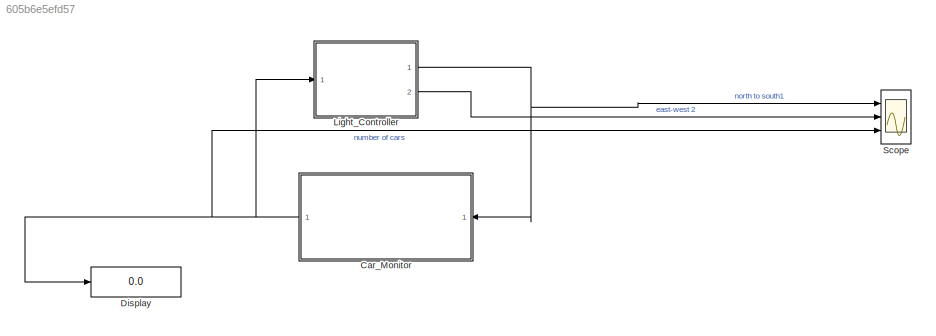
MODEL slx_605b6e5efd57
KIND model
CONFIG AbsTol = auto
CONFIG EnableMultiTasking = off
CONFIG FixedStep = auto
CONFIG MaxStep = auto
CONFIG MinStep = auto
CONFIG RelTol = 1e-3
CONFIG SampleTimeConstraint = Unconstrained
CONFIG SolverName = VariableStepAuto
CONFIG StartTime = 0.0
CONFIG StopTime = 10.0
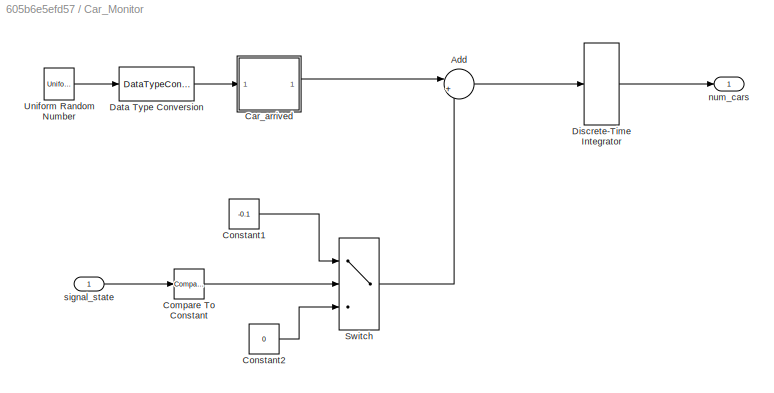
BLOCK [SubSystem] Car_Monitor
  Ports = [1, 1]
  RequestExecContextInheritance = off
BLOCK [Sum] Car_Monitor/Add
  Inputs = |++
  Ports = [2, 1]
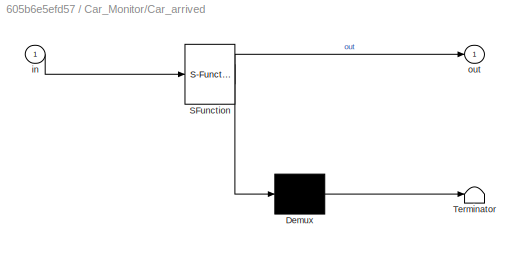
BLOCK [SubSystem] Car_Monitor/Car_arrived
  ErrorFcn = Stateflow.Translate.translate
  PermitHierarchicalResolution = ExplicitOnly
  Ports = [1, 1]
  RequestExecContextInheritance = off
  SFBlockType = Chart
  TreatAsAtomicUnit = on
BLOCK [Demux] Car_Monitor/Car_arrived/ Demux 
  Outputs = 1
  Ports = [1, 1]
BLOCK [S-Function] Car_Monitor/Car_arrived/ SFunction 
  EnableBusSupport = on
  FunctionName = sf_sfun
  PortCounts = [1 2]
  Ports = [1, 2]
  SFcnIsStateOwnerBlock = off
  SFunctionDeploymentMode = off
  Tag = Stateflow S-Function 4
BLOCK [Terminator] Car_Monitor/Car_arrived/ Terminator 
BLOCK [Inport] Car_Monitor/Car_arrived/in
BLOCK [Outport] Car_Monitor/Car_arrived/out
  VectorParamsAs1DForOutWhenUnconnected = off
BLOCK [Reference] Car_Monitor/Compare To Constant  REF=simulink/Logic and Bit
Operations/Compare
To Constant
  Ports = [1, 1]
  SourceBlock = simulink/Logic and Bit\nOperations/Compare\nTo Constant
  SourceProductBaseCode = SL
  SourceType = Compare To Constant
BLOCK [Constant] Car_Monitor/Constant1
  Value = -0.1
BLOCK [Constant] Car_Monitor/Constant2
  Value = 0
BLOCK [DataTypeConversion] Car_Monitor/Data Type Conversion
  RndMeth = Floor
  SaturateOnIntegerOverflow = off
BLOCK [DiscreteIntegrator] Car_Monitor/Discrete-Time Integrator
  ICPrevOutput = DiscIntNeverNeededParam
  ICPrevScaledInput = DiscIntNeverNeededParam
  LimitOutput = on
  LowerSaturationLimit = 0
  Ports = [1, 1]
  SampleTime = -1
BLOCK [Switch] Car_Monitor/Switch
  Criteria = u2 ~= 0
  InputSameDT = off
  SaturateOnIntegerOverflow = off
BLOCK [UniformRandomNumber] Car_Monitor/Uniform Random Number
  Maximum = 200
  Minimum = 100
  SampleTime = 0
  Seed = 177836
BLOCK [Outport] Car_Monitor/num_cars
  VectorParamsAs1DForOutWhenUnconnected = off
BLOCK [Inport] Car_Monitor/signal_state
BLOCK [Display] Display
  Decimation = 1
  Ports = [1]
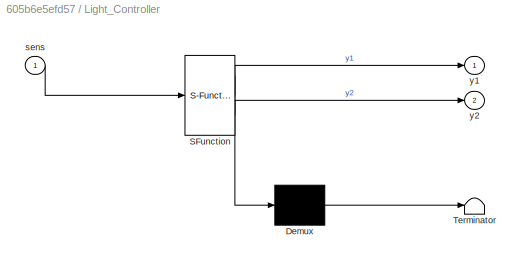
BLOCK [SubSystem] Light_Controller
  ErrorFcn = Stateflow.Translate.translate
  PermitHierarchicalResolution = ExplicitOnly
  Ports = [1, 2]
  RequestExecContextInheritance = off
  SFBlockType = Chart
  TreatAsAtomicUnit = on
BLOCK [Demux] Light_Controller/ Demux 
  Outputs = 1
  Ports = [1, 1]
BLOCK [S-Function] Light_Controller/ SFunction 
  EnableBusSupport = on
  FunctionName = sf_sfun
  PortCounts = [1 3]
  Ports = [1, 3]
  SFcnIsStateOwnerBlock = off
  SFunctionDeploymentMode = off
  Tag = Stateflow S-Function 2
BLOCK [Terminator] Light_Controller/ Terminator 
BLOCK [Inport] Light_Controller/sens
BLOCK [Outport] Light_Controller/y1
  VectorParamsAs1DForOutWhenUnconnected = off
BLOCK [Outport] Light_Controller/y2
  Port = 2
  VectorParamsAs1DForOutWhenUnconnected = off
BLOCK [Scope] Scope
  Floating = off
  NumInputPorts = 3
  Ports = [3]
  ScopeSpecificationString = Simulink.scopes.TimeScopeBlockCfg('CurrentConfiguration', extmgr.ConfigurationSet(extmgr.Configuration('Core','General UI',true),extmgr.Configuration('Core','Source UI',true),extmgr.Configuration('Sources','WiredSimulink',true),extmgr.Configuration('Visuals','Time Domain',true,'SerializedDisplays',{struct('MinYLimReal','0.75','MaxYLimReal','3.25','YLabelReal','','MinYLimMag','0.75','MaxYLimMag','3...<+2728ch>
LINE Car_Monitor/Add:1 -> Car_Monitor/Discrete-Time Integrator:1
LINE Car_Monitor/Car_arrived:1 -> Car_Monitor/Add:1
LINE Car_Monitor/Compare To Constant:1 -> Car_Monitor/Switch:2
LINE Car_Monitor/Constant1:1 -> Car_Monitor/Switch:1
LINE Car_Monitor/Constant2:1 -> Car_Monitor/Switch:3
LINE Car_Monitor/Data Type Conversion:1 -> Car_Monitor/Car_arrived:1
LINE Car_Monitor/Discrete-Time Integrator:1 -> Car_Monitor/num_cars:1
LINE Car_Monitor/Switch:1 -> Car_Monitor/Add:2
LINE Car_Monitor/Uniform Random Number:1 -> Car_Monitor/Data Type Conversion:1
LINE Car_Monitor/signal_state:1 -> Car_Monitor/Compare To Constant:1
NET Car_Monitor:1 -> Display:1, Light_Controller:1, Scope:3
NET Light_Controller:1 -> Car_Monitor:1, Scope:1
LINE Light_Controller:2 -> Scope:2
note: NET lines group one-source signal fan-out (src -> all destinations, sorted); 1:1 wires keep LINE
CHART Light_Controller states=5 transitions=6
  STATE_LABEL 'Stop\ny1 = RED;\ny2 = GREEN;'
  STATE_LABEL 'StopForTraffic\ny1 = RED;\ny2 = GREEN;'
  STATE_LABEL 'StopToGo\ny1 = RED;\ny2 = YELLOW;'
  STATE_LABEL 'GoToStop\ny1 = YELLOW;\ny2 = RED;'
  STATE_LABEL 'Go\ny1 = GREEN;\ny2 = RED;'
CHART Car_Monitor/Car_arrived states=0 transitions=1
CHART  states=0 transitions=0
CHART  states=0 transitions=0
